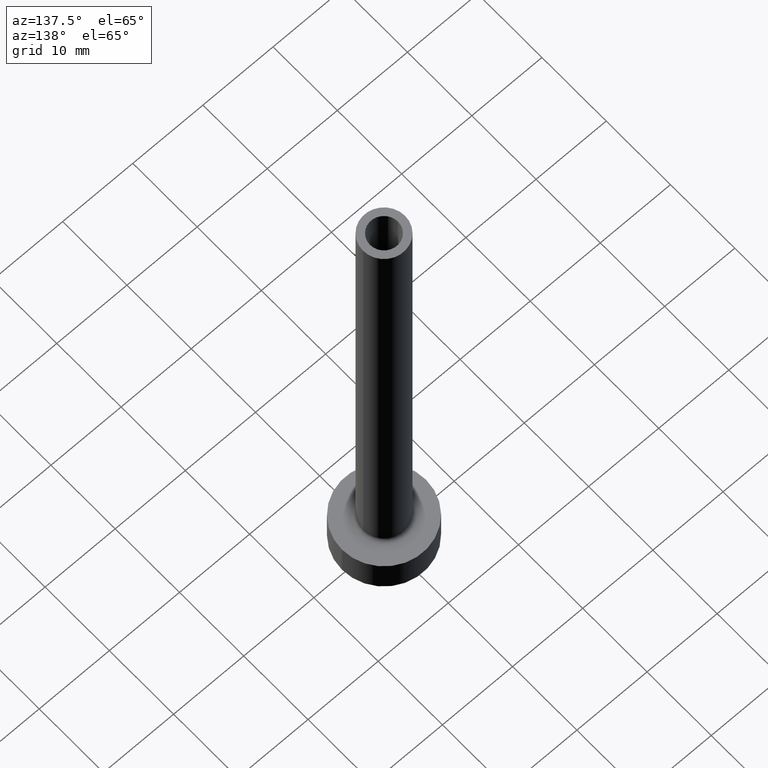
[diagram: clean part render]
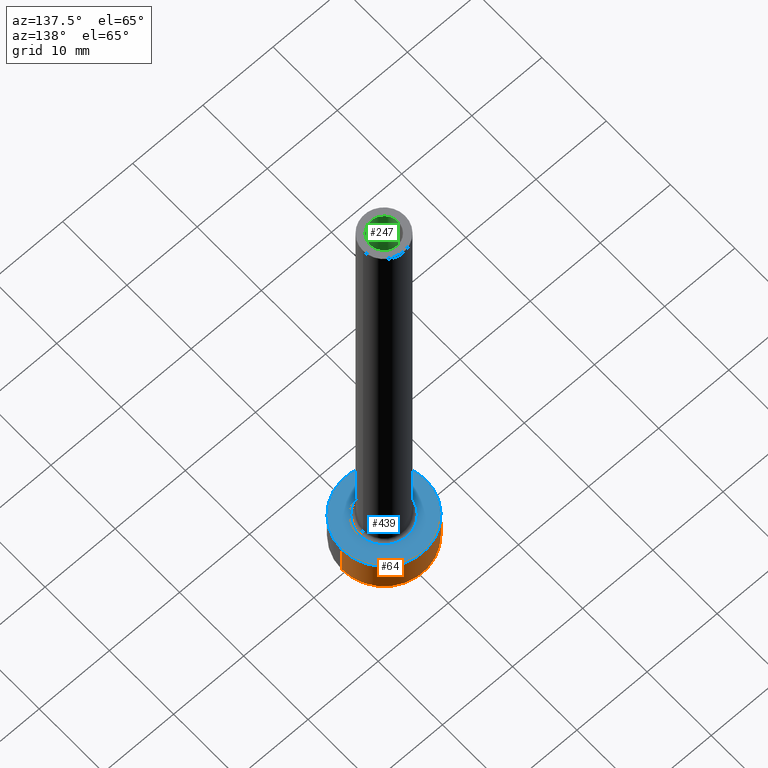
[diagram: same view with three faces highlighted in distinct colors, each labeled with its STEP entity id]
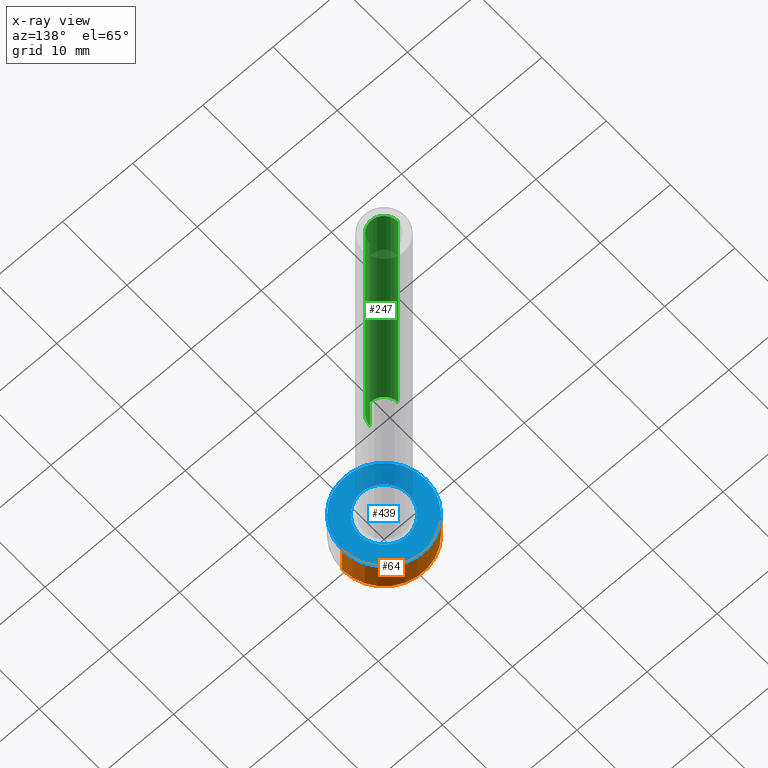
[diagram: x-ray of the same camera — body ghosted, the three highlighted faces saturated]
A machine part, auxiliary view with three faces highlighted in distinct colors.
The next image is the same camera in x-ray (body ghosted, the three faces saturated) — at least one of them is partly hidden behind the body in this view.
Their STEP definitions:

[orange] entity #64 — the highlighted cylindrical surface (partial cylindrical patch) has radius 6 mm, axis along (-0, -0, -1).
#10 = VECTOR ( 'NONE', #258, 1000.000000000000000 ) ;
#16 = EDGE_CURVE ( 'NONE', #442, #261, #282, .T. ) ;
#18 = VERTEX_POINT ( 'NONE', #305 ) ;
#56 = AXIS2_PLACEMENT_3D ( 'NONE', #163, #82, #128 ) ;
#64 = ADVANCED_FACE ( 'NONE', ( #102 ), #325, .T. ) ;
#82 = DIRECTION ( 'NONE',  ( 0.000000000000000000, 0.000000000000000000, 1.000000000000000000 ) ) ;
#83 = EDGE_CURVE ( 'NONE', #442, #18, #460, .T. ) ;
#102 = FACE_OUTER_BOUND ( 'NONE', #332, .T. ) ;
#110 = CARTESIAN_POINT ( 'NONE',  ( 0.000000000000000000, 0.000000000000000000, 5.000000000000000000 ) ) ;
#115 = AXIS2_PLACEMENT_3D ( 'NONE', #166, #294, #262 ) ;
#128 = DIRECTION ( 'NONE',  ( 1.000000000000000000, 0.000000000000000000, 0.000000000000000000 ) ) ;
#163 = CARTESIAN_POINT ( 'NONE',  ( 0.000000000000000000, 0.000000000000000000, 5.000000000000000000 ) ) ;
#165 = EDGE_CURVE ( 'NONE', #18, #229, #358, .T. ) ;
#166 = CARTESIAN_POINT ( 'NONE',  ( 0.000000000000000000, 0.000000000000000000, 0.000000000000000000 ) ) ;
#168 = AXIS2_PLACEMENT_3D ( 'NONE', #110, #187, #189 ) ;
#180 = ORIENTED_EDGE ( 'NONE', *, *, #83, .T. ) ;
#187 = DIRECTION ( 'NONE',  ( -0.000000000000000000, -0.000000000000000000, -1.000000000000000000 ) ) ;
#189 = DIRECTION ( 'NONE',  ( -1.000000000000000000, 0.000000000000000000, 0.000000000000000000 ) ) ;
#218 = ORIENTED_EDGE ( 'NONE', *, *, #225, .F. ) ;
#225 = EDGE_CURVE ( 'NONE', #261, #229, #255, .T. ) ;
#229 = VERTEX_POINT ( 'NONE', #251 ) ;
#251 = CARTESIAN_POINT ( 'NONE',  ( -6.000000000000000888, 0.000000000000000000, 0.000000000000000000 ) ) ;
#255 = LINE ( 'NONE', #428, #365 ) ;
#258 = DIRECTION ( 'NONE',  ( -0.000000000000000000, -0.000000000000000000, -1.000000000000000000 ) ) ;
#261 = VERTEX_POINT ( 'NONE', #450 ) ;
#262 = DIRECTION ( 'NONE',  ( 1.000000000000000000, 0.000000000000000000, 0.000000000000000000 ) ) ;
#263 = DIRECTION ( 'NONE',  ( -0.000000000000000000, -0.000000000000000000, -1.000000000000000000 ) ) ;
#282 = CIRCLE ( 'NONE', #56, 6.000000000000000888 ) ;
#294 = DIRECTION ( 'NONE',  ( 0.000000000000000000, 0.000000000000000000, 1.000000000000000000 ) ) ;
#305 = CARTESIAN_POINT ( 'NONE',  ( 6.000000000000000888, 7.347880794884120722E-16, 0.000000000000000000 ) ) ;
#325 = CYLINDRICAL_SURFACE ( 'NONE', #168, 6.000000000000000888 ) ;
#332 = EDGE_LOOP ( 'NONE', ( #440, #180, #402, #218 ) ) ;
#358 = CIRCLE ( 'NONE', #115, 6.000000000000000888 ) ;
#365 = VECTOR ( 'NONE', #263, 1000.000000000000000 ) ;
#393 = CARTESIAN_POINT ( 'NONE',  ( 6.000000000000000888, 7.347880794884120722E-16, 5.000000000000000000 ) ) ;
#402 = ORIENTED_EDGE ( 'NONE', *, *, #165, .T. ) ;
#428 = CARTESIAN_POINT ( 'NONE',  ( -6.000000000000000888, 0.000000000000000000, 5.000000000000000000 ) ) ;
#440 = ORIENTED_EDGE ( 'NONE', *, *, #16, .F. ) ;
#442 = VERTEX_POINT ( 'NONE', #452 ) ;
#450 = CARTESIAN_POINT ( 'NONE',  ( -6.000000000000000888, 0.000000000000000000, 5.000000000000000000 ) ) ;
#452 = CARTESIAN_POINT ( 'NONE',  ( 6.000000000000000888, 7.347880794884120722E-16, 5.000000000000000000 ) ) ;
#460 = LINE ( 'NONE', #393, #10 ) ;

[blue] entity #439 — the highlighted planar face has unit normal (0, 0, 1).
#5 = VERTEX_POINT ( 'NONE', #30 ) ;
#13 = FACE_OUTER_BOUND ( 'NONE', #66, .T. ) ;
#16 = EDGE_CURVE ( 'NONE', #442, #261, #282, .T. ) ;
#20 = EDGE_CURVE ( 'NONE', #5, #404, #72, .T. ) ;
#21 = DIRECTION ( 'NONE',  ( -0.000000000000000000, -0.000000000000000000, -1.000000000000000000 ) ) ;
#22 = DIRECTION ( 'NONE',  ( 0.000000000000000000, 0.000000000000000000, 1.000000000000000000 ) ) ;
#30 = CARTESIAN_POINT ( 'NONE',  ( -3.500000000000000444, 4.286263797015737088E-16, 5.000000000000002665 ) ) ;
#43 = ORIENTED_EDGE ( 'NONE', *, *, #20, .T. ) ;
#51 = CARTESIAN_POINT ( 'NONE',  ( 0.000000000000000000, 0.000000000000000000, 5.000000000000000000 ) ) ;
#56 = AXIS2_PLACEMENT_3D ( 'NONE', #163, #82, #128 ) ;
#58 = CARTESIAN_POINT ( 'NONE',  ( 0.000000000000000000, 0.000000000000000000, 5.000000000000000000 ) ) ;
#65 = CIRCLE ( 'NONE', #349, 3.500000000000000444 ) ;
#66 = EDGE_LOOP ( 'NONE', ( #109, #362 ) ) ;
#71 = EDGE_LOOP ( 'NONE', ( #117, #43 ) ) ;
#72 = CIRCLE ( 'NONE', #338, 3.500000000000000444 ) ;
#82 = DIRECTION ( 'NONE',  ( 0.000000000000000000, 0.000000000000000000, 1.000000000000000000 ) ) ;
#90 = DIRECTION ( 'NONE',  ( 1.000000000000000000, 0.000000000000000000, 0.000000000000000000 ) ) ;
#109 = ORIENTED_EDGE ( 'NONE', *, *, #374, .T. ) ;
#117 = ORIENTED_EDGE ( 'NONE', *, *, #268, .T. ) ;
#120 = PLANE ( 'NONE',  #398 ) ;
#128 = DIRECTION ( 'NONE',  ( 1.000000000000000000, 0.000000000000000000, 0.000000000000000000 ) ) ;
#163 = CARTESIAN_POINT ( 'NONE',  ( 0.000000000000000000, 0.000000000000000000, 5.000000000000000000 ) ) ;
#238 = CARTESIAN_POINT ( 'NONE',  ( 0.000000000000000000, 0.000000000000000000, 5.000000000000000000 ) ) ;
#261 = VERTEX_POINT ( 'NONE', #450 ) ;
#268 = EDGE_CURVE ( 'NONE', #404, #5, #65, .T. ) ;
#271 = DIRECTION ( 'NONE',  ( 1.000000000000000000, 0.000000000000000000, 0.000000000000000000 ) ) ;
#282 = CIRCLE ( 'NONE', #56, 6.000000000000000888 ) ;
#288 = CIRCLE ( 'NONE', #341, 6.000000000000000888 ) ;
#300 = DIRECTION ( 'NONE',  ( 1.000000000000000000, 0.000000000000000000, 0.000000000000000000 ) ) ;
#331 = CARTESIAN_POINT ( 'NONE',  ( 0.000000000000000000, 0.000000000000000000, 5.000000000000000000 ) ) ;
#335 = DIRECTION ( 'NONE',  ( 1.000000000000000000, 0.000000000000000000, -0.000000000000000000 ) ) ;
#338 = AXIS2_PLACEMENT_3D ( 'NONE', #238, #451, #271 ) ;
#341 = AXIS2_PLACEMENT_3D ( 'NONE', #58, #347, #90 ) ;
#347 = DIRECTION ( 'NONE',  ( 0.000000000000000000, 0.000000000000000000, 1.000000000000000000 ) ) ;
#349 = AXIS2_PLACEMENT_3D ( 'NONE', #331, #21, #300 ) ;
#362 = ORIENTED_EDGE ( 'NONE', *, *, #16, .T. ) ;
#374 = EDGE_CURVE ( 'NONE', #261, #442, #288, .T. ) ;
#388 = FACE_BOUND ( 'NONE', #71, .T. ) ;
#398 = AXIS2_PLACEMENT_3D ( 'NONE', #51, #22, #335 ) ;
#404 = VERTEX_POINT ( 'NONE', #458 ) ;
#439 = ADVANCED_FACE ( 'NONE', ( #388, #13 ), #120, .T. ) ;
#442 = VERTEX_POINT ( 'NONE', #452 ) ;
#450 = CARTESIAN_POINT ( 'NONE',  ( -6.000000000000000888, 0.000000000000000000, 5.000000000000000000 ) ) ;
#451 = DIRECTION ( 'NONE',  ( -0.000000000000000000, -0.000000000000000000, -1.000000000000000000 ) ) ;
#452 = CARTESIAN_POINT ( 'NONE',  ( 6.000000000000000888, 7.347880794884120722E-16, 5.000000000000000000 ) ) ;
#458 = CARTESIAN_POINT ( 'NONE',  ( 3.500000000000000444, 0.000000000000000000, 5.000000000000002665 ) ) ;

[green] entity #247 — the highlighted cylindrical surface (edge-blend (fillet) strip) has radius 2 mm, axis along (0, 0, -1).
#24 = ORIENTED_EDGE ( 'NONE', *, *, #230, .F. ) ;
#38 = CARTESIAN_POINT ( 'NONE',  ( -2.000000000000000000, 0.000000000000000000, 75.00000000000001421 ) ) ;
#41 = FACE_OUTER_BOUND ( 'NONE', #334, .T. ) ;
#55 = CARTESIAN_POINT ( 'NONE',  ( -2.000000000000000000, 0.000000000000000000, 75.00000000000001421 ) ) ;
#70 = VECTOR ( 'NONE', #104, 1000.000000000000000 ) ;
#73 = DIRECTION ( 'NONE',  ( 1.000000000000000000, 0.000000000000000000, 0.000000000000000000 ) ) ;
#80 = VECTOR ( 'NONE', #291, 1000.000000000000000 ) ;
#96 = CIRCLE ( 'NONE', #310, 2.000000000000000000 ) ;
#103 = DIRECTION ( 'NONE',  ( 0.000000000000000000, 0.000000000000000000, 1.000000000000000000 ) ) ;
#104 = DIRECTION ( 'NONE',  ( 0.000000000000000000, 0.000000000000000000, -1.000000000000000000 ) ) ;
#105 = AXIS2_PLACEMENT_3D ( 'NONE', #339, #121, #333 ) ;
#121 = DIRECTION ( 'NONE',  ( 0.000000000000000000, 0.000000000000000000, -1.000000000000000000 ) ) ;
#145 = EDGE_CURVE ( 'NONE', #345, #357, #278, .T. ) ;
#153 = CARTESIAN_POINT ( 'NONE',  ( 0.000000000000000000, 0.000000000000000000, 75.00000000000001421 ) ) ;
#186 = EDGE_CURVE ( 'NONE', #419, #287, #96, .T. ) ;
#198 = EDGE_CURVE ( 'NONE', #357, #287, #433, .T. ) ;
#227 = CARTESIAN_POINT ( 'NONE',  ( 2.000000000000000000, 2.449293598294705921E-16, 30.00000000000001421 ) ) ;
#230 = EDGE_CURVE ( 'NONE', #345, #419, #399, .T. ) ;
#247 = ADVANCED_FACE ( 'NONE', ( #41 ), #309, .F. ) ;
#277 = CARTESIAN_POINT ( 'NONE',  ( -2.000000000000000000, 0.000000000000000000, 30.00000000000001421 ) ) ;
#278 = CIRCLE ( 'NONE', #293, 2.000000000000000000 ) ;
#287 = VERTEX_POINT ( 'NONE', #227 ) ;
#291 = DIRECTION ( 'NONE',  ( 0.000000000000000000, 0.000000000000000000, -1.000000000000000000 ) ) ;
#293 = AXIS2_PLACEMENT_3D ( 'NONE', #153, #329, #295 ) ;
#295 = DIRECTION ( 'NONE',  ( 1.000000000000000000, 0.000000000000000000, 0.000000000000000000 ) ) ;
#309 = CYLINDRICAL_SURFACE ( 'NONE', #105, 2.000000000000000000 ) ;
#310 = AXIS2_PLACEMENT_3D ( 'NONE', #353, #103, #73 ) ;
#320 = ORIENTED_EDGE ( 'NONE', *, *, #198, .T. ) ;
#329 = DIRECTION ( 'NONE',  ( 0.000000000000000000, 0.000000000000000000, 1.000000000000000000 ) ) ;
#333 = DIRECTION ( 'NONE',  ( -1.000000000000000000, 0.000000000000000000, 0.000000000000000000 ) ) ;
#334 = EDGE_LOOP ( 'NONE', ( #364, #320, #405, #24 ) ) ;
#339 = CARTESIAN_POINT ( 'NONE',  ( 0.000000000000000000, 0.000000000000000000, 75.00000000000001421 ) ) ;
#345 = VERTEX_POINT ( 'NONE', #55 ) ;
#348 = CARTESIAN_POINT ( 'NONE',  ( 2.000000000000000000, 2.449293598294705921E-16, 75.00000000000001421 ) ) ;
#353 = CARTESIAN_POINT ( 'NONE',  ( 0.000000000000000000, 0.000000000000000000, 30.00000000000001421 ) ) ;
#357 = VERTEX_POINT ( 'NONE', #348 ) ;
#363 = CARTESIAN_POINT ( 'NONE',  ( 2.000000000000000000, 2.449293598294705921E-16, 75.00000000000001421 ) ) ;
#364 = ORIENTED_EDGE ( 'NONE', *, *, #145, .T. ) ;
#399 = LINE ( 'NONE', #38, #80 ) ;
#405 = ORIENTED_EDGE ( 'NONE', *, *, #186, .F. ) ;
#419 = VERTEX_POINT ( 'NONE', #277 ) ;
#433 = LINE ( 'NONE', #363, #70 ) ;